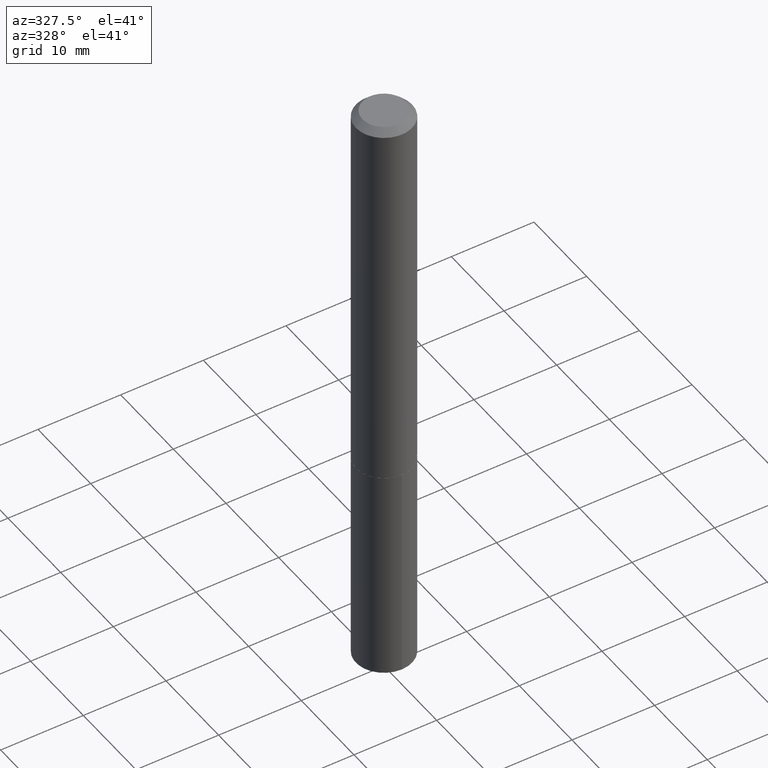
[diagram: clean part render]
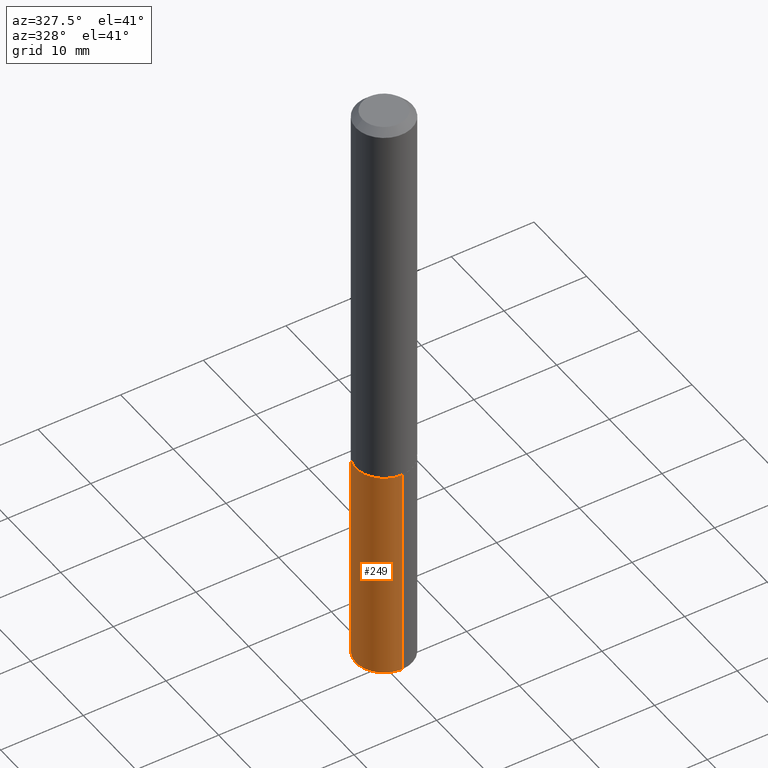
[diagram: same view with one face highlighted and labeled with its STEP entity id]
A machine part, auxiliary view. The second image highlights one B-rep face of the part: STEP entity #249.
In plain terms, the highlighted cylindrical surface (edge-blend (fillet) strip) has radius 3.3998 mm, axis along (-0, 0, 1).
Its self-contained STEP definition (entity closure, byte-faithful):
#23 = CARTESIAN_POINT ( 'NONE',  ( 9.510614518149640872E-16, 0.1338499999999899492, -2.877535000593094860 ) ) ;
#33 = ORIENTED_EDGE ( 'NONE', *, *, #127, .T. ) ;
#37 = VERTEX_POINT ( 'NONE', #204 ) ;
#50 = DIRECTION ( 'NONE',  ( -2.445519446321027074E-29, 3.491408819286292575E-15, 1.000000000000000000 ) ) ;
#73 = EDGE_CURVE ( 'NONE', #76, #366, #117, .T. ) ;
#76 = VERTEX_POINT ( 'NONE', #23 ) ;
#80 = LINE ( 'NONE', #234, #382 ) ;
#91 = VECTOR ( 'NONE', #248, 39.37007874015748143 ) ;
#92 = CARTESIAN_POINT ( 'NONE',  ( 4.505776275396114718E-29, -6.433054366818497031E-15, -1.842500000000000249 ) ) ;
#117 = CIRCLE ( 'NONE', #293, 0.1338499999999999968 ) ;
#120 = DIRECTION ( 'NONE',  ( -6.982962677686265133E-15, -1.000000000000000000, 4.081954417130015942E-15 ) ) ;
#121 = DIRECTION ( 'NONE',  ( -2.445519446321027074E-29, 3.491408819286292575E-15, 1.000000000000000000 ) ) ;
#127 = EDGE_CURVE ( 'NONE', #366, #254, #80, .T. ) ;
#147 = DIRECTION ( 'NONE',  ( -2.445519446321027074E-29, 3.491408819286292575E-15, 1.000000000000000000 ) ) ;
#153 = LINE ( 'NONE', #272, #91 ) ;
#154 = CYLINDRICAL_SURFACE ( 'NONE', #288, 0.1338499999999999968 ) ;
#165 = EDGE_CURVE ( 'NONE', #37, #254, #209, .T. ) ;
#167 = ORIENTED_EDGE ( 'NONE', *, *, #165, .F. ) ;
#188 = DIRECTION ( 'NONE',  ( -6.982962677686265133E-15, -1.000000000000000000, 4.081954417130015942E-15 ) ) ;
#202 = ORIENTED_EDGE ( 'NONE', *, *, #73, .T. ) ;
#204 = CARTESIAN_POINT ( 'NONE',  ( 9.510614518149640872E-16, 0.1338499999999935297, -1.842500000000000915 ) ) ;
#209 = CIRCLE ( 'NONE', #350, 0.1338499999999999968 ) ;
#234 = CARTESIAN_POINT ( 'NONE',  ( -9.346695544082615722E-16, -0.1338500000000064361, -1.842499999999999805 ) ) ;
#243 = EDGE_CURVE ( 'NONE', #76, #37, #153, .T. ) ;
#246 = CARTESIAN_POINT ( 'NONE',  ( -9.346695544082361315E-16, -0.1338500000000100165, -2.877535000593093972 ) ) ;
#248 = DIRECTION ( 'NONE',  ( -2.445519446321027074E-29, 3.491408819286292575E-15, 1.000000000000000000 ) ) ;
#249 = ADVANCED_FACE ( 'NONE', ( #387 ), #154, .T. ) ;
#254 = VERTEX_POINT ( 'NONE', #302 ) ;
#267 = CARTESIAN_POINT ( 'NONE',  ( 4.505776275396114718E-29, -6.433054366818497031E-15, -1.842500000000000249 ) ) ;
#272 = CARTESIAN_POINT ( 'NONE',  ( 9.510614518149390408E-16, 0.1338499999999935575, -1.842500000000000915 ) ) ;
#288 = AXIS2_PLACEMENT_3D ( 'NONE', #92, #121, #188 ) ;
#291 = ORIENTED_EDGE ( 'NONE', *, *, #243, .F. ) ;
#293 = AXIS2_PLACEMENT_3D ( 'NONE', #351, #50, #379 ) ;
#297 = DIRECTION ( 'NONE',  ( -2.445519446321027074E-29, 3.491408819286292575E-15, 1.000000000000000000 ) ) ;
#302 = CARTESIAN_POINT ( 'NONE',  ( -9.346695544082615722E-16, -0.1338500000000064361, -1.842499999999999805 ) ) ;
#316 = EDGE_LOOP ( 'NONE', ( #291, #202, #33, #167 ) ) ;
#350 = AXIS2_PLACEMENT_3D ( 'NONE', #267, #297, #120 ) ;
#351 = CARTESIAN_POINT ( 'NONE',  ( 7.036974496969421564E-29, -1.004678469615921796E-14, -2.877535000593094416 ) ) ;
#366 = VERTEX_POINT ( 'NONE', #246 ) ;
#379 = DIRECTION ( 'NONE',  ( -6.982962677686265133E-15, -1.000000000000000000, 4.081954417130015942E-15 ) ) ;
#382 = VECTOR ( 'NONE', #147, 39.37007874015748143 ) ;
#387 = FACE_OUTER_BOUND ( 'NONE', #316, .T. ) ;